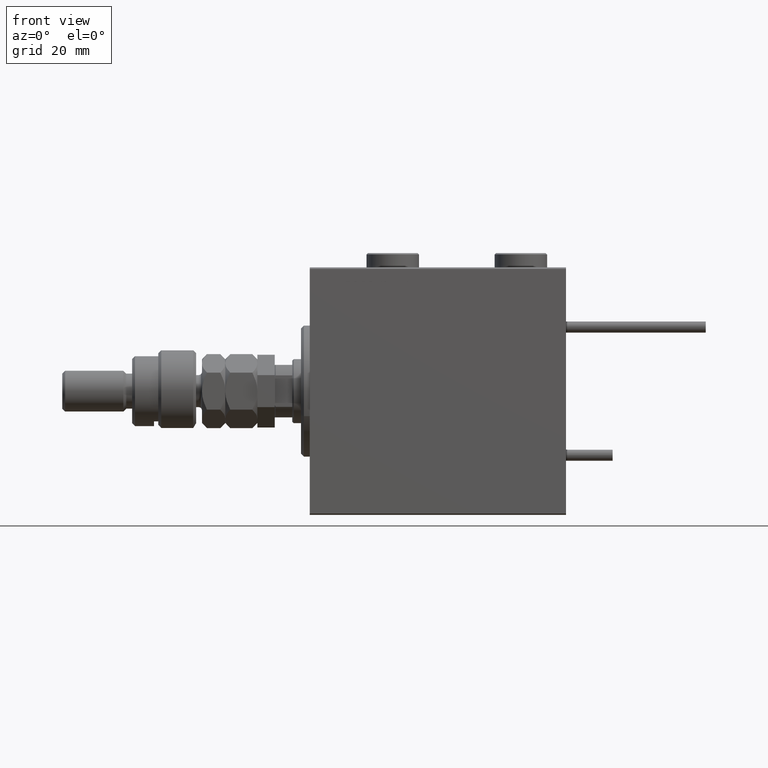
[diagram: clean part render]
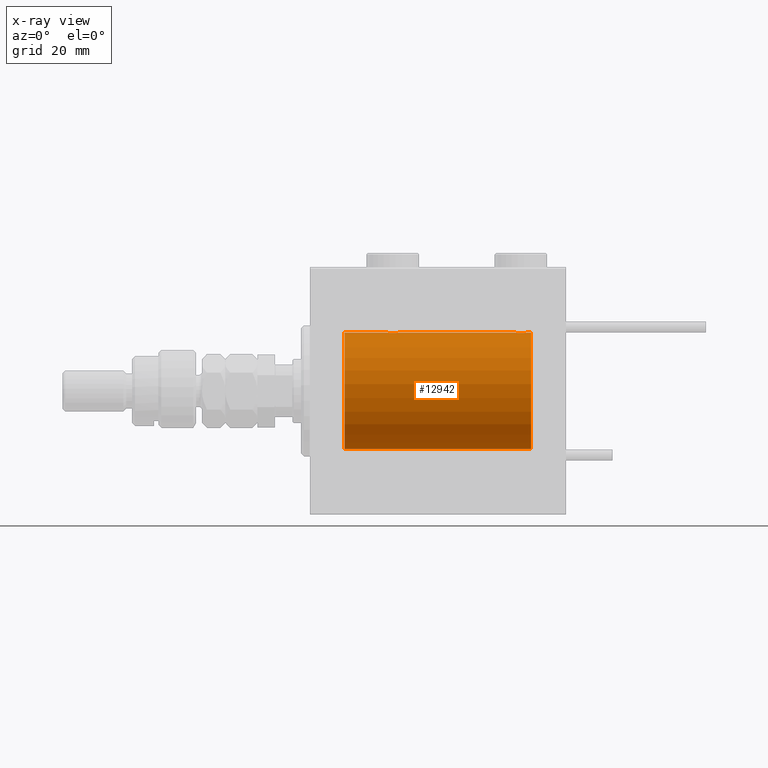
[diagram: x-ray — body ghosted, one internal face saturated and labeled with its STEP entity id]
A machine part, front view, then the same camera in x-ray: the body is ghosted and one INTERNAL B-rep face — a face not visible from any outside direction — is saturated and labeled: STEP entity #12942.
In plain terms, the highlighted cylindrical surface (partial cylindrical patch) has radius 20 mm, axis along (-1, -0, -0).
Its self-contained STEP definition (entity closure, byte-faithful):
#132 = CARTESIAN_POINT ( 'NONE',  ( 76.00000000000000000, 0.000000000000000000, 0.000000000000000000 ) ) ;
#379 = CARTESIAN_POINT ( 'NONE',  ( 26.90058475115969827, -1.228758402364238833, 19.96307487248084911 ) ) ;
#382 = CARTESIAN_POINT ( 'NONE',  ( 71.17903093152709459, -1.507328959728491791, -19.94333197382385592 ) ) ;
#651 = CARTESIAN_POINT ( 'NONE',  ( 30.24686976303072328, -1.008108445278688148, 19.97602680192586533 ) ) ;
#654 = CARTESIAN_POINT ( 'NONE',  ( 73.50306556339603503, -1.735203193119893461, -19.92471783160911514 ) ) ;
#922 = CARTESIAN_POINT ( 'NONE',  ( 72.76358144091415170, -1.986835489085815309, -19.90108393514801577 ) ) ;
#1765 = EDGE_CURVE ( 'NONE', #21983, #19761, #9889, .T. ) ;
#2625 = CARTESIAN_POINT ( 'NONE',  ( 28.23922743968432414, -1.987205673487811630, -19.90104673894211018 ) ) ;
#2904 = CARTESIAN_POINT ( 'NONE',  ( 26.55320515808203297, -0.5270924491156746550, -19.99450181871975829 ) ) ;
#3093 = CARTESIAN_POINT ( 'NONE',  ( 72.76077256031568652, -1.987205673487813851, 19.90104673894211018 ) ) ;
#3642 = CARTESIAN_POINT ( 'NONE',  ( 72.23641855908587672, -1.986835489085817086, 19.90108393514801932 ) ) ;
#3666 = CARTESIAN_POINT ( 'NONE',  ( 27.49693443660398273, -1.735203193119900344, 19.92471783160911158 ) ) ;
#3856 = ORIENTED_EDGE ( 'NONE', *, *, #40041, .F. ) ;
#3912 = CARTESIAN_POINT ( 'NONE',  ( 73.82096906847289119, -1.507328959728492235, 19.94333197382385592 ) ) ;
#4107 = FACE_OUTER_BOUND ( 'NONE', #41245, .T. ) ;
#4192 = CARTESIAN_POINT ( 'NONE',  ( 74.09774691554730452, -1.230936344679277372, 19.96293863536309132 ) ) ;
#4500 = CARTESIAN_POINT ( 'NONE',  ( 72.63365196142451907, -1.999898234284062104, -19.89975896996866211 ) ) ;
#5576 = CARTESIAN_POINT ( 'NONE',  ( 71.85651471266959334, -1.898187925611341198, -19.90978194174746818 ) ) ;
#5749 = DIRECTION ( 'NONE',  ( -1.000000000000000000, -0.000000000000000000, -0.000000000000000000 ) ) ;
#6898 = VERTEX_POINT ( 'NONE', #38048 ) ;
#6968 = CARTESIAN_POINT ( 'NONE',  ( 26.50000000000000355, -6.257798774011376898E-15, -20.00000000000000000 ) ) ;
#7019 = CARTESIAN_POINT ( 'NONE',  ( 29.01923512135277150, -1.935816449315127308, -19.90611141657401362 ) ) ;
#7285 = CARTESIAN_POINT ( 'NONE',  ( 29.14630673924644100, -1.897222639860597360, -19.90987429971497136 ) ) ;
#7559 = CARTESIAN_POINT ( 'NONE',  ( 27.49932780860757475, -1.736582545981378845, -19.92459705242981371 ) ) ;
#7762 = CARTESIAN_POINT ( 'NONE',  ( 72.63058871710833841, -2.000100592782557474, 19.89973863218036243 ) ) ;
#8076 = CARTESIAN_POINT ( 'NONE',  ( 27.85369326075355190, -1.897222639860601578, 19.90987429971495715 ) ) ;
#8320 = CARTESIAN_POINT ( 'NONE',  ( 73.14348528733042087, -1.898187925611342974, 19.90978194174746818 ) ) ;
#8727 = CARTESIAN_POINT ( 'NONE',  ( 11.99999999999999645, 0.000000000000000000, 0.000000000000000000 ) ) ;
#8781 = CARTESIAN_POINT ( 'NONE',  ( 76.00000000000000000, 0.000000000000000000, 20.00000000000000000 ) ) ;
#8866 = VERTEX_POINT ( 'NONE', #18074 ) ;
#8912 = CARTESIAN_POINT ( 'NONE',  ( 30.50000000000000000, -9.453669475664189070E-16, 20.00000000000000000 ) ) ;
#9152 = LINE ( 'NONE', #21254, #28285 ) ;
#9183 = CARTESIAN_POINT ( 'NONE',  ( 74.24825913460018967, -1.005710574260840984, -19.97614991974274901 ) ) ;
#9262 = ORIENTED_EDGE ( 'NONE', *, *, #27500, .F. ) ;
#9592 = VERTEX_POINT ( 'NONE', #49710 ) ;
#9712 = CARTESIAN_POINT ( 'NONE',  ( 74.44755062882509833, -0.5243189001515005110, -19.99457699142850231 ) ) ;
#9889 = LINE ( 'NONE', #10148, #14529 ) ;
#10148 = CARTESIAN_POINT ( 'NONE',  ( 76.00000000000000000, 2.449293598294706513E-15, -20.00000000000000000 ) ) ;
#11374 = VERTEX_POINT ( 'NONE', #34425 ) ;
#11959 = CARTESIAN_POINT ( 'NONE',  ( 27.17903093152711591, -1.507328959728495787, -19.94333197382386302 ) ) ;
#12004 = LINE ( 'NONE', #49381, #52983 ) ;
#12447 = CARTESIAN_POINT ( 'NONE',  ( 71.17693331080535302, -1.505486175075774868, 19.94347168299867690 ) ) ;
#12942 = ADVANCED_FACE ( 'NONE', ( #4107 ), #20891, .F. ) ;
#13311 = CARTESIAN_POINT ( 'NONE',  ( 70.90225308445273811, -1.230936344679278038, -19.96293863536309487 ) ) ;
#13471 = DIRECTION ( 'NONE',  ( 0.000000000000000000, 0.000000000000000000, 1.000000000000000000 ) ) ;
#13581 = CARTESIAN_POINT ( 'NONE',  ( 71.28194580527849666, -1.591668229360193143, -19.93669678979812332 ) ) ;
#13882 = ORIENTED_EDGE ( 'NONE', *, *, #36228, .F. ) ;
#14529 = VECTOR ( 'NONE', #5749, 1000.000000000000000 ) ;
#15444 = ORIENTED_EDGE ( 'NONE', *, *, #23118, .T. ) ;
#15839 = CARTESIAN_POINT ( 'NONE',  ( 28.36941128289166514, -2.000100592782555697, -19.89973863218036598 ) ) ;
#16111 = CARTESIAN_POINT ( 'NONE',  ( 29.50306556339602082, -1.735203193119896348, -19.92471783160911158 ) ) ;
#16310 = CARTESIAN_POINT ( 'NONE',  ( 70.75174086539982454, -1.005710574260844314, 19.97614991974274545 ) ) ;
#16336 = CARTESIAN_POINT ( 'NONE',  ( 28.36634803857551290, -1.999898234284068321, 19.89975896996865856 ) ) ;
#16373 = CARTESIAN_POINT ( 'NONE',  ( 27.28194580527850022, -1.591668229360200026, -19.93669678979812687 ) ) ;
#16454 = B_SPLINE_CURVE_WITH_KNOTS ( 'NONE', 3,
 ( #16615, #46005, #20720, #38050, #379, #37776, #33937, #3666, #46562, #8076, #20446, #16891, #16336, #17433, #41604, #33670, #50403, #29526, #21549, #46285, #25398, #38317, #651, #42159, #50681, #8912 ),
 .UNSPECIFIED., .F., .F.,
 ( 4, 2, 2, 2, 2, 2, 2, 2, 2, 2, 2, 2, 4 ),
 ( 0.006256819553329818866, 0.007038738568778795009, 0.007820657584227770284, 0.008211617091952255754, 0.008602576599676739488, 0.008993536107401223223, 0.009384495615125706958, 0.009775455122850190692, 0.01016641463057467443, 0.01055737413829915816, 0.01094833364602364190, 0.01173025266147261110, 0.01251217167692157857 ),
 .UNSPECIFIED. ) ;
#16531 = LINE ( 'NONE', #37968, #22017 ) ;
#16615 = CARTESIAN_POINT ( 'NONE',  ( 26.50000000000000355, -1.552596590610734385E-23, 20.00000000000000000 ) ) ;
#16891 = CARTESIAN_POINT ( 'NONE',  ( 28.23641855908585541, -1.986835489085820194, 19.90108393514801222 ) ) ;
#16917 = DIRECTION ( 'NONE',  ( 0.000000000000000000, 0.000000000000000000, 1.000000000000000000 ) ) ;
#17162 = CARTESIAN_POINT ( 'NONE',  ( 70.55320515808200810, -0.5270924491156711023, -19.99450181871975474 ) ) ;
#17433 = CARTESIAN_POINT ( 'NONE',  ( 28.63058871710834552, -2.000100592782559250, 19.89973863218036598 ) ) ;
#17436 = CARTESIAN_POINT ( 'NONE',  ( 70.75313023696928383, -1.008108445278686816, -19.97602680192586178 ) ) ;
#18074 = CARTESIAN_POINT ( 'NONE',  ( 30.50000000000000000, -9.453669475664189070E-16, 20.00000000000000000 ) ) ;
#18117 = B_SPLINE_CURVE_WITH_KNOTS ( 'NONE', 3,
 ( #45143, #44874, #23990, #16310, #28666, #12447, #20141, #41305, #45422, #50373, #29225, #3642, #40761, #7762, #3093, #45979, #8320, #24534, #20418, #41851, #3912, #4192, #37192, #53946, #33082, #45698 ),
 .UNSPECIFIED., .F., .F.,
 ( 4, 2, 2, 2, 2, 2, 2, 2, 2, 2, 2, 2, 4 ),
 ( 0.006256819553329831876, 0.007038738568778781998, 0.007820657584227732120, 0.008211617091952221059, 0.008602576599676711733, 0.008993536107401200672, 0.009384495615125689610, 0.009775455122850180284, 0.01016641463057467096, 0.01055737413829915816, 0.01094833364602364884, 0.01173025266147262671, 0.01251217167692160459 ),
 .UNSPECIFIED. ) ;
#18411 = EDGE_CURVE ( 'NONE', #19761, #31640, #45790, .T. ) ;
#18793 = CARTESIAN_POINT ( 'NONE',  ( 11.99999999999999645, 2.449293598294706513E-15, -20.00000000000000000 ) ) ;
#19761 = VERTEX_POINT ( 'NONE', #18793 ) ;
#19941 = CARTESIAN_POINT ( 'NONE',  ( 29.38829437207092354, -1.796691196322319994, -19.91919800395357498 ) ) ;
#20042 = ORIENTED_EDGE ( 'NONE', *, *, #18411, .T. ) ;
#20141 = CARTESIAN_POINT ( 'NONE',  ( 71.27971054205536916, -1.589957321664209333, 19.93683391378736403 ) ) ;
#20418 = CARTESIAN_POINT ( 'NONE',  ( 73.50067219139242525, -1.736582545981373515, 19.92459705242980306 ) ) ;
#20446 = CARTESIAN_POINT ( 'NONE',  ( 27.98076487864723561, -1.935816449315131749, 19.90611141657401362 ) ) ;
#20487 = CARTESIAN_POINT ( 'NONE',  ( 27.61420923329272981, -1.797933656607920039, -19.91908554465558367 ) ) ;
#20720 = CARTESIAN_POINT ( 'NONE',  ( 26.55244937117491943, -0.5243189001515041747, 19.99457699142850231 ) ) ;
#20891 = CYLINDRICAL_SURFACE ( 'NONE', #33300, 20.00000000000000000 ) ;
#21254 = CARTESIAN_POINT ( 'NONE',  ( 76.00000000000000000, 0.000000000000000000, 20.00000000000000000 ) ) ;
#21285 = CARTESIAN_POINT ( 'NONE',  ( 71.98351467081099031, -1.936551476643008529, -19.90603968831099024 ) ) ;
#21335 = CARTESIAN_POINT ( 'NONE',  ( 30.50000000000000000, 2.449293582768389958E-15, -20.00000000000000000 ) ) ;
#21549 = CARTESIAN_POINT ( 'NONE',  ( 29.50067219139245367, -1.736582545981377734, 19.92459705242981371 ) ) ;
#21640 = DIRECTION ( 'NONE',  ( 0.000000000000000000, 0.000000000000000000, 1.000000000000000000 ) ) ;
#21888 = CARTESIAN_POINT ( 'NONE',  ( 76.00000000000000000, 0.000000000000000000, 20.00000000000000000 ) ) ;
#21973 = DIRECTION ( 'NONE',  ( -1.000000000000000000, -0.000000000000000000, -0.000000000000000000 ) ) ;
#21983 = VERTEX_POINT ( 'NONE', #6968 ) ;
#22017 = VECTOR ( 'NONE', #33307, 1000.000000000000000 ) ;
#22094 = AXIS2_PLACEMENT_3D ( 'NONE', #8727, #50776, #21640 ) ;
#22349 = CARTESIAN_POINT ( 'NONE',  ( 73.01923512135279282, -1.935816449315126642, -19.90611141657402072 ) ) ;
#22364 = CARTESIAN_POINT ( 'NONE',  ( 76.00000000000000000, 2.449293598294706513E-15, -20.00000000000000000 ) ) ;
#23118 = EDGE_CURVE ( 'NONE', #31411, #6898, #50806, .T. ) ;
#23518 = CARTESIAN_POINT ( 'NONE',  ( 29.72028945794465216, -1.589957321664210665, -19.93683391378736047 ) ) ;
#23791 = CARTESIAN_POINT ( 'NONE',  ( 27.85651471266958978, -1.898187925611340976, -19.90978194174746818 ) ) ;
#23990 = CARTESIAN_POINT ( 'NONE',  ( 70.55244937117491588, -0.5243189001515065062, 19.99457699142850231 ) ) ;
#24534 = CARTESIAN_POINT ( 'NONE',  ( 73.38579076670727375, -1.797933656607921371, 19.91908554465557657 ) ) ;
#25398 = CARTESIAN_POINT ( 'NONE',  ( 29.82096906847290896, -1.507328959728495121, 19.94333197382386302 ) ) ;
#25947 = CARTESIAN_POINT ( 'NONE',  ( 74.50000000000001421, 2.449293582762867932E-15, -20.00000000000000000 ) ) ;
#26114 = EDGE_CURVE ( 'NONE', #6898, #42348, #12004, .T. ) ;
#26350 = ORIENTED_EDGE ( 'NONE', *, *, #34400, .T. ) ;
#26474 = CARTESIAN_POINT ( 'NONE',  ( 71.61420923329269783, -1.797933656607920039, -19.91908554465557657 ) ) ;
#26716 = EDGE_CURVE ( 'NONE', #38003, #31411, #39397, .T. ) ;
#27141 = ORIENTED_EDGE ( 'NONE', *, *, #26114, .T. ) ;
#27500 = EDGE_CURVE ( 'NONE', #38003, #32064, #47241, .T. ) ;
#27921 = CARTESIAN_POINT ( 'NONE',  ( 29.82306668919470027, -1.505486175075773314, -19.94347168299866979 ) ) ;
#28193 = CARTESIAN_POINT ( 'NONE',  ( 30.24825913460018256, -1.005710574260840096, -19.97614991974273835 ) ) ;
#28285 = VECTOR ( 'NONE', #34453, 1000.000000000000000 ) ;
#28632 = CARTESIAN_POINT ( 'NONE',  ( 76.00000000000000000, 2.449293598294706513E-15, -20.00000000000000000 ) ) ;
#28666 = CARTESIAN_POINT ( 'NONE',  ( 70.90058475115971248, -1.228758402364237945, 19.96307487248085266 ) ) ;
#28783 = DIRECTION ( 'NONE',  ( -1.000000000000000000, -0.000000000000000000, -0.000000000000000000 ) ) ;
#29225 = CARTESIAN_POINT ( 'NONE',  ( 71.98076487864723561, -1.935816449315128418, 19.90611141657401362 ) ) ;
#29419 = CARTESIAN_POINT ( 'NONE',  ( 76.00000000000000000, 0.000000000000000000, 0.000000000000000000 ) ) ;
#29526 = CARTESIAN_POINT ( 'NONE',  ( 29.38579076670728440, -1.797933656607920261, 19.91908554465558367 ) ) ;
#30081 = CARTESIAN_POINT ( 'NONE',  ( 73.38829437207093065, -1.796691196322316886, -19.91919800395357143 ) ) ;
#30364 = DIRECTION ( 'NONE',  ( -1.000000000000000000, 0.000000000000000000, 0.000000000000000000 ) ) ;
#30607 = CARTESIAN_POINT ( 'NONE',  ( 73.14630673924648363, -1.897222639860595139, -19.90987429971497136 ) ) ;
#31411 = VERTEX_POINT ( 'NONE', #25947 ) ;
#31640 = VERTEX_POINT ( 'NONE', #53093 ) ;
#32064 = VERTEX_POINT ( 'NONE', #8781 ) ;
#32334 = CARTESIAN_POINT ( 'NONE',  ( 26.50000000000000355, -6.257798774011376898E-15, -20.00000000000000000 ) ) ;
#32871 = CARTESIAN_POINT ( 'NONE',  ( 26.75313023696928738, -1.008108445278691478, -19.97602680192586533 ) ) ;
#33082 = CARTESIAN_POINT ( 'NONE',  ( 74.50000000000001421, -0.2644051013330996902, 20.00000000000000000 ) ) ;
#33114 = CARTESIAN_POINT ( 'NONE',  ( 74.50000000000001421, 2.449293582762867932E-15, -20.00000000000000000 ) ) ;
#33153 = CARTESIAN_POINT ( 'NONE',  ( 30.50000000000000000, 2.449293582768389958E-15, -20.00000000000000000 ) ) ;
#33300 = AXIS2_PLACEMENT_3D ( 'NONE', #29419, #21973, #13471 ) ;
#33307 = DIRECTION ( 'NONE',  ( -1.000000000000000000, -0.000000000000000000, -0.000000000000000000 ) ) ;
#33670 = CARTESIAN_POINT ( 'NONE',  ( 29.01648532918905232, -1.936551476643010528, 19.90603968831098314 ) ) ;
#33937 = CARTESIAN_POINT ( 'NONE',  ( 27.27971054205535495, -1.589957321664213552, 19.93683391378736047 ) ) ;
#33940 = CARTESIAN_POINT ( 'NONE',  ( 74.09941524884031594, -1.228758402364235947, -19.96307487248084556 ) ) ;
#34094 = VECTOR ( 'NONE', #43500, 1000.000000000000000 ) ;
#34392 = ORIENTED_EDGE ( 'NONE', *, *, #46712, .F. ) ;
#34400 = EDGE_CURVE ( 'NONE', #42348, #21983, #40727, .T. ) ;
#34425 = CARTESIAN_POINT ( 'NONE',  ( 74.50000000000001421, 1.186436973908835920E-15, 20.00000000000000000 ) ) ;
#34453 = DIRECTION ( 'NONE',  ( -1.000000000000000000, -0.000000000000000000, -0.000000000000000000 ) ) ;
#34481 = CARTESIAN_POINT ( 'NONE',  ( 73.72028945794465926, -1.589957321664207113, -19.93683391378736758 ) ) ;
#35823 = AXIS2_PLACEMENT_3D ( 'NONE', #132, #30364, #16917 ) ;
#36228 = EDGE_CURVE ( 'NONE', #50180, #31640, #16531, .T. ) ;
#36231 = ORIENTED_EDGE ( 'NONE', *, *, #26716, .T. ) ;
#36271 = ORIENTED_EDGE ( 'NONE', *, *, #39924, .T. ) ;
#36451 = CARTESIAN_POINT ( 'NONE',  ( 26.50000000000000711, -0.2644051013331055744, -19.99999999999999645 ) ) ;
#37192 = CARTESIAN_POINT ( 'NONE',  ( 74.24686976303073038, -1.008108445278686371, 19.97602680192586178 ) ) ;
#37348 = VECTOR ( 'NONE', #38123, 1000.000000000000000 ) ;
#37776 = CARTESIAN_POINT ( 'NONE',  ( 27.17693331080529973, -1.505486175075776645, 19.94347168299866979 ) ) ;
#37968 = CARTESIAN_POINT ( 'NONE',  ( 76.00000000000000000, 0.000000000000000000, 20.00000000000000000 ) ) ;
#38003 = VERTEX_POINT ( 'NONE', #28632 ) ;
#38048 = CARTESIAN_POINT ( 'NONE',  ( 70.50000000000000000, -5.133775462521235346E-15, -20.00000000000000000 ) ) ;
#38050 = CARTESIAN_POINT ( 'NONE',  ( 26.75174086539980678, -1.005710574260844092, 19.97614991974273835 ) ) ;
#38054 = CARTESIAN_POINT ( 'NONE',  ( 74.50000000000002842, -0.2610801504281906049, -19.99999999999999645 ) ) ;
#38123 = DIRECTION ( 'NONE',  ( -1.000000000000000000, -0.000000000000000000, -0.000000000000000000 ) ) ;
#38317 = CARTESIAN_POINT ( 'NONE',  ( 30.09774691554730808, -1.230936344679279593, 19.96293863536309487 ) ) ;
#38860 = CARTESIAN_POINT ( 'NONE',  ( 70.50000000000000000, -5.133775462521235346E-15, -20.00000000000000000 ) ) ;
#39397 = LINE ( 'NONE', #22364, #34094 ) ;
#39924 = EDGE_CURVE ( 'NONE', #9592, #11374, #18117, .T. ) ;
#40041 = EDGE_CURVE ( 'NONE', #32064, #11374, #9152, .T. ) ;
#40284 = CARTESIAN_POINT ( 'NONE',  ( 30.09941524884030528, -1.228758402364235724, -19.96307487248084911 ) ) ;
#40563 = CARTESIAN_POINT ( 'NONE',  ( 26.90225308445270613, -1.230936344679281369, -19.96293863536309487 ) ) ;
#40727 = B_SPLINE_CURVE_WITH_KNOTS ( 'NONE', 3,
 ( #33153, #41375, #44945, #28193, #40284, #27921, #23518, #16111, #19941, #7285, #7019, #45217, #44669, #15839, #2625, #41099, #23791, #20487, #7559, #16373, #11959, #40563, #32871, #2904, #36451, #32334 ),
 .UNSPECIFIED., .F., .F.,
 ( 4, 2, 2, 2, 2, 2, 2, 2, 2, 2, 2, 2, 4 ),
 ( 0.006256819553329837948, 0.007038738568778813223, 0.007820657584227789366, 0.008211617091952273101, 0.008602576599676756836, 0.008993536107401240570, 0.009384495615125724305, 0.009775455122850208040, 0.01016641463057469177, 0.01055737413829917551, 0.01094833364602365924, 0.01173025266147262498, 0.01251217167692159245 ),
 .UNSPECIFIED. ) ;
#40761 = CARTESIAN_POINT ( 'NONE',  ( 72.36634803857549514, -1.999898234284064324, 19.89975896996866211 ) ) ;
#41099 = CARTESIAN_POINT ( 'NONE',  ( 27.98351467081095123, -1.936551476643008529, -19.90603968831098314 ) ) ;
#41245 = EDGE_LOOP ( 'NONE', ( #9262, #36231, #15444, #27141, #26350, #48609, #20042, #13882, #47792, #34392, #36271, #3856 ) ) ;
#41305 = CARTESIAN_POINT ( 'NONE',  ( 71.49693443660400760, -1.735203193119895460, 19.92471783160911514 ) ) ;
#41375 = CARTESIAN_POINT ( 'NONE',  ( 30.50000000000000000, -0.2610801504281901053, -20.00000000000000000 ) ) ;
#41604 = CARTESIAN_POINT ( 'NONE',  ( 28.76077256031568652, -1.987205673487814739, 19.90104673894211018 ) ) ;
#41851 = CARTESIAN_POINT ( 'NONE',  ( 73.71805419472153176, -1.591668229360194697, 19.93669678979812332 ) ) ;
#42159 = CARTESIAN_POINT ( 'NONE',  ( 30.44679484191798124, -0.5270924491156695479, 19.99450181871975829 ) ) ;
#42348 = VERTEX_POINT ( 'NONE', #21335 ) ;
#43235 = CARTESIAN_POINT ( 'NONE',  ( 73.82306668919467540, -1.505486175075773758, -19.94347168299867690 ) ) ;
#43495 = EDGE_CURVE ( 'NONE', #50180, #8866, #16454, .T. ) ;
#43500 = DIRECTION ( 'NONE',  ( -1.000000000000000000, -0.000000000000000000, -0.000000000000000000 ) ) ;
#44669 = CARTESIAN_POINT ( 'NONE',  ( 28.63365196142447644, -1.999898234284065657, -19.89975896996865856 ) ) ;
#44874 = CARTESIAN_POINT ( 'NONE',  ( 70.50000000000002842, -0.2610801504281921037, 20.00000000000000000 ) ) ;
#44945 = CARTESIAN_POINT ( 'NONE',  ( 30.44755062882508412, -0.5243189001515006220, -19.99457699142850231 ) ) ;
#45143 = CARTESIAN_POINT ( 'NONE',  ( 70.50000000000000000, -1.553188236289650144E-23, 20.00000000000000000 ) ) ;
#45217 = CARTESIAN_POINT ( 'NONE',  ( 28.76358144091414815, -1.986835489085816198, -19.90108393514801222 ) ) ;
#45422 = CARTESIAN_POINT ( 'NONE',  ( 71.61170562792909777, -1.796691196322324879, 19.91919800395357143 ) ) ;
#45698 = CARTESIAN_POINT ( 'NONE',  ( 74.50000000000001421, 1.186436973908835920E-15, 20.00000000000000000 ) ) ;
#45790 = CIRCLE ( 'NONE', #22094, 20.00000000000000000 ) ;
#45979 = CARTESIAN_POINT ( 'NONE',  ( 73.01648532918906653, -1.936551476643010528, 19.90603968831098669 ) ) ;
#46005 = CARTESIAN_POINT ( 'NONE',  ( 26.50000000000001421, -0.2610801504281932695, 20.00000000000000000 ) ) ;
#46285 = CARTESIAN_POINT ( 'NONE',  ( 29.71805419472152110, -1.591668229360197806, 19.93669678979812687 ) ) ;
#46562 = CARTESIAN_POINT ( 'NONE',  ( 27.61170562792909777, -1.796691196322324213, 19.91919800395357498 ) ) ;
#46565 = CARTESIAN_POINT ( 'NONE',  ( 70.50000000000000000, -0.2644051013331069067, -19.99999999999999289 ) ) ;
#46637 = LINE ( 'NONE', #21888, #37348 ) ;
#46712 = EDGE_CURVE ( 'NONE', #9592, #8866, #46637, .T. ) ;
#47241 = CIRCLE ( 'NONE', #35823, 20.00000000000000000 ) ;
#47357 = CARTESIAN_POINT ( 'NONE',  ( 72.36941128289164737, -2.000100592782554809, -19.89973863218035888 ) ) ;
#47792 = ORIENTED_EDGE ( 'NONE', *, *, #43495, .T. ) ;
#48609 = ORIENTED_EDGE ( 'NONE', *, *, #1765, .T. ) ;
#49313 = CARTESIAN_POINT ( 'NONE',  ( 26.50000000000000355, -1.552596590610734385E-23, 20.00000000000000000 ) ) ;
#49381 = CARTESIAN_POINT ( 'NONE',  ( 76.00000000000000000, 2.449293598294706513E-15, -20.00000000000000000 ) ) ;
#49710 = CARTESIAN_POINT ( 'NONE',  ( 70.50000000000000000, -1.553188236289650144E-23, 20.00000000000000000 ) ) ;
#50180 = VERTEX_POINT ( 'NONE', #49313 ) ;
#50373 = CARTESIAN_POINT ( 'NONE',  ( 71.85369326075363006, -1.897222639860601356, 19.90987429971496425 ) ) ;
#50403 = CARTESIAN_POINT ( 'NONE',  ( 29.14348528733042443, -1.898187925611342974, 19.90978194174746818 ) ) ;
#50681 = CARTESIAN_POINT ( 'NONE',  ( 30.50000000000000000, -0.2644051013330992461, 19.99999999999999645 ) ) ;
#50776 = DIRECTION ( 'NONE',  ( -1.000000000000000000, 0.000000000000000000, 0.000000000000000000 ) ) ;
#50806 = B_SPLINE_CURVE_WITH_KNOTS ( 'NONE', 3,
 ( #33114, #38054, #9712, #9183, #33940, #43235, #34481, #654, #30081, #30607, #22349, #922, #4500, #47357, #51224, #21285, #5576, #26474, #51487, #13581, #382, #13311, #17436, #17162, #46565, #38860 ),
 .UNSPECIFIED., .F., .F.,
 ( 4, 2, 2, 2, 2, 2, 2, 2, 2, 2, 2, 2, 4 ),
 ( 0.006256819553329831876, 0.007038738568778780264, 0.007820657584227728651, 0.008211617091952217590, 0.008602576599676706529, 0.008993536107401195467, 0.009384495615125684406, 0.009775455122850173345, 0.01016641463057466055, 0.01055737413829914775, 0.01094833364602363843, 0.01173025266147261284, 0.01251217167692158898 ),
 .UNSPECIFIED. ) ;
#51224 = CARTESIAN_POINT ( 'NONE',  ( 72.23922743968432769, -1.987205673487811630, -19.90104673894211018 ) ) ;
#51487 = CARTESIAN_POINT ( 'NONE',  ( 71.49932780860757475, -1.736582545981372405, -19.92459705242980661 ) ) ;
#52983 = VECTOR ( 'NONE', #28783, 1000.000000000000000 ) ;
#53093 = CARTESIAN_POINT ( 'NONE',  ( 11.99999999999999645, 0.000000000000000000, 20.00000000000000000 ) ) ;
#53946 = CARTESIAN_POINT ( 'NONE',  ( 74.44679484191796348, -0.5270924491156685487, 19.99450181871975474 ) ) ;